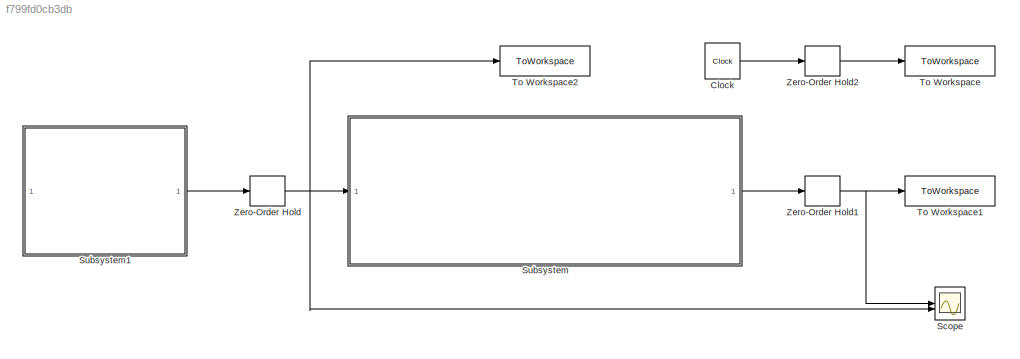
MODEL slx_f799fd0cb3db
KIND model
CONFIG AbsTol = auto
CONFIG EnableMultiTasking = off
CONFIG FixedStep = auto
CONFIG MaxStep = auto
CONFIG MinStep = auto
CONFIG RelTol = 1e-3
CONFIG SampleTimeConstraint = Unconstrained
CONFIG SolverName = VariableStepAuto
CONFIG StartTime = 0.0
CONFIG StopTime = 100
BLOCK [Clock] Clock
BLOCK [Scope] Scope
  Floating = off
  NumInputPorts = 2
  ScopeSpecificationString = Simulink.scopes.TimeScopeBlockCfg('CurrentConfiguration', extmgr.ConfigurationSet(extmgr.Configuration('Core','General UI',true),extmgr.Configuration('Core','Source UI',true),extmgr.Configuration('Sources','WiredSimulink',true),extmgr.Configuration('Visuals','Time Domain',true,'SerializedDisplays',{struct('MinYLimReal','-12.88779','MaxYLimReal','12.88691','YLabelReal','','MinYLimMag','0.00000','Ma...<+1389ch>
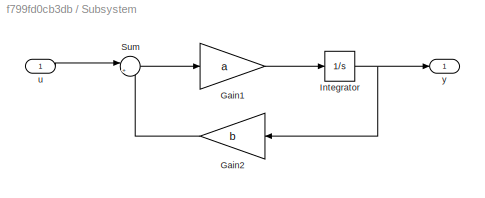
BLOCK [SubSystem] Subsystem
BLOCK [Gain] Subsystem/Gain1
  Gain = a
BLOCK [Gain] Subsystem/Gain2
  Gain = b
  NameLocation = top
BLOCK [Integrator] Subsystem/Integrator
BLOCK [Sum] Subsystem/Sum
  Inputs = |+-
BLOCK [Inport] Subsystem/u
BLOCK [Outport] Subsystem/y
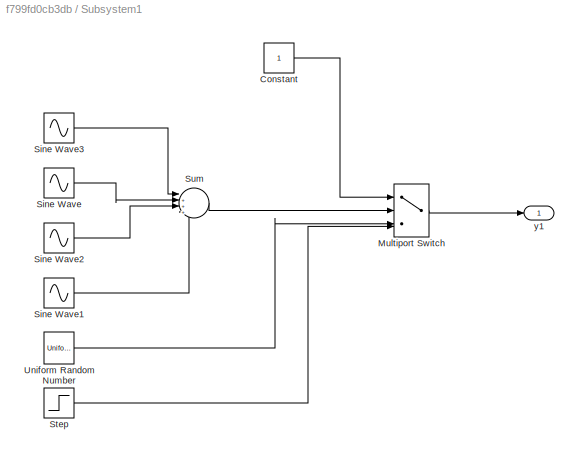
BLOCK [SubSystem] Subsystem1
BLOCK [Constant] Subsystem1/Constant
BLOCK [MultiPortSwitch] Subsystem1/Multiport Switch
  InputSameDT = off
  SaturateOnIntegerOverflow = off
BLOCK [Sin] Subsystem1/Sine Wave
  Amplitude = 5
  Frequency = 5
  SampleTime = 0
BLOCK [Sin] Subsystem1/Sine Wave1
  Amplitude = 3
  SampleTime = 0
BLOCK [Sin] Subsystem1/Sine Wave2
  Amplitude = 2
  Frequency = 0.1
  SampleTime = 0
BLOCK [Sin] Subsystem1/Sine Wave3
  Frequency = 10
  SampleTime = 0
BLOCK [Step] Subsystem1/Step
  SampleTime = 0
BLOCK [Sum] Subsystem1/Sum
  Inputs = |++++
BLOCK [UniformRandomNumber] Subsystem1/Uniform Random Number
  Minimum = 0
  SampleTime = 0.1
BLOCK [Outport] Subsystem1/y1
BLOCK [ToWorkspace] To Workspace
  FixptAsFi = on
  MaxDataPoints = inf
  SampleTime = -1
  VariableName = t
BLOCK [ToWorkspace] To Workspace1
  FixptAsFi = on
  MaxDataPoints = inf
  SampleTime = -1
  VariableName = y
BLOCK [ToWorkspace] To Workspace2
  FixptAsFi = on
  MaxDataPoints = inf
  SampleTime = -1
  VariableName = u
BLOCK [ZeroOrderHold] Zero-Order Hold
  SampleTime = 0.01
BLOCK [ZeroOrderHold] Zero-Order Hold1
  SampleTime = 0.01
BLOCK [ZeroOrderHold] Zero-Order Hold2
  SampleTime = 0.01
LINE Clock:1 -> Zero-Order Hold2:1
LINE Subsystem/Gain1:1 -> Subsystem/Integrator:1
LINE Subsystem/Gain2:1 -> Subsystem/Sum:2
NET Subsystem/Integrator:1 -> Subsystem/Gain2:1, Subsystem/y:1
LINE Subsystem/Sum:1 -> Subsystem/Gain1:1
LINE Subsystem/u:1 -> Subsystem/Sum:1
LINE Subsystem1/Constant:1 -> Subsystem1/Multiport Switch:1
LINE Subsystem1/Multiport Switch:1 -> Subsystem1/y1:1
LINE Subsystem1/Sine Wave1:1 -> Subsystem1/Sum:4
LINE Subsystem1/Sine Wave2:1 -> Subsystem1/Sum:3
LINE Subsystem1/Sine Wave3:1 -> Subsystem1/Sum:1
LINE Subsystem1/Sine Wave:1 -> Subsystem1/Sum:2
LINE Subsystem1/Step:1 -> Subsystem1/Multiport Switch:4
LINE Subsystem1/Sum:1 -> Subsystem1/Multiport Switch:2
LINE Subsystem1/Uniform Random Number:1 -> Subsystem1/Multiport Switch:3
LINE Subsystem1:1 -> Zero-Order Hold:1
LINE Subsystem:1 -> Zero-Order Hold1:1
NET Zero-Order Hold1:1 -> Scope:1, To Workspace1:1
LINE Zero-Order Hold2:1 -> To Workspace:1
NET Zero-Order Hold:1 -> Scope:2, Subsystem:1, To Workspace2:1
note: NET lines group one-source signal fan-out (src -> all destinations, sorted); 1:1 wires keep LINE
